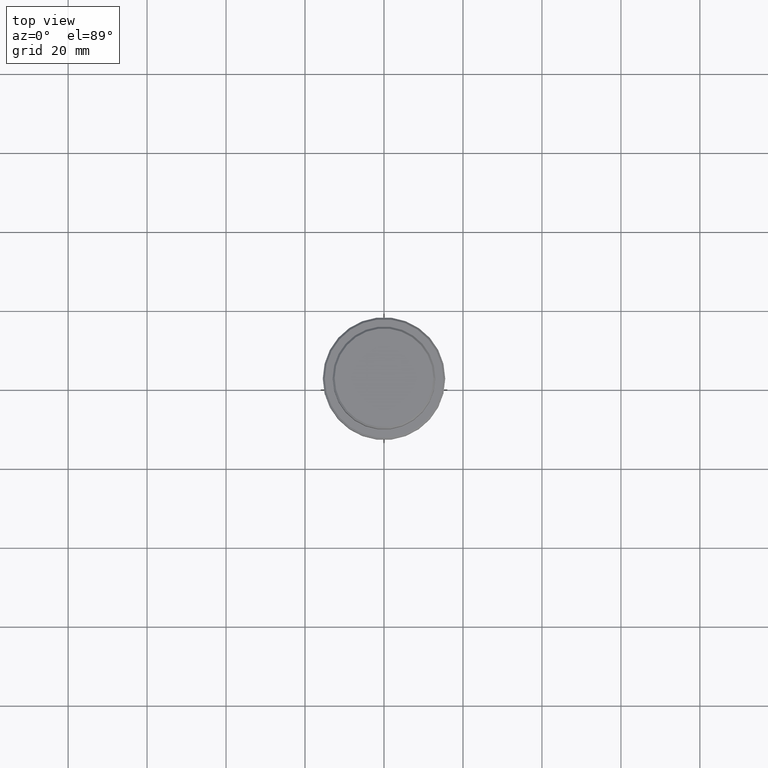
[diagram: clean part render]
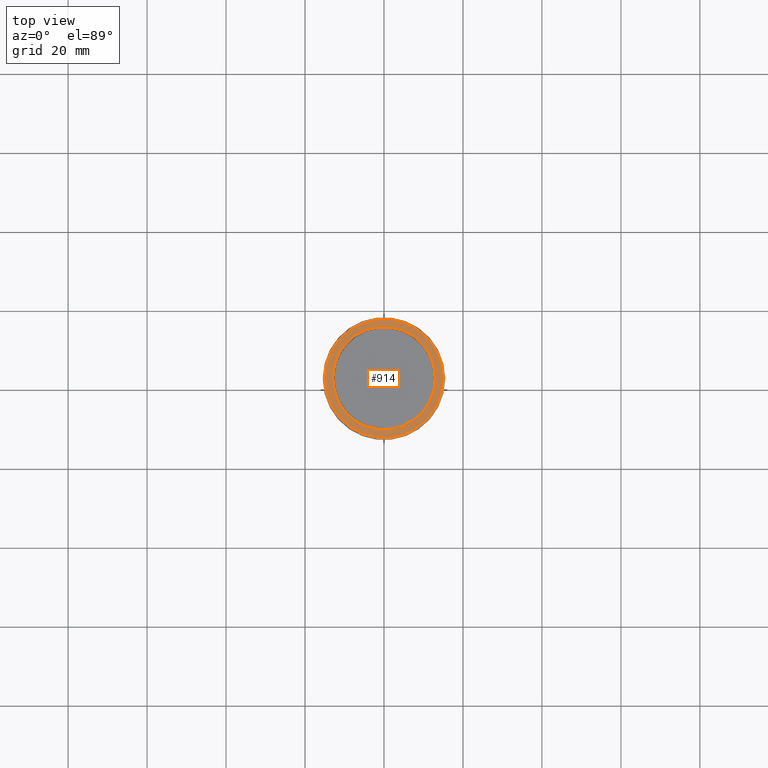
[diagram: same view with one face highlighted and labeled with its STEP entity id]
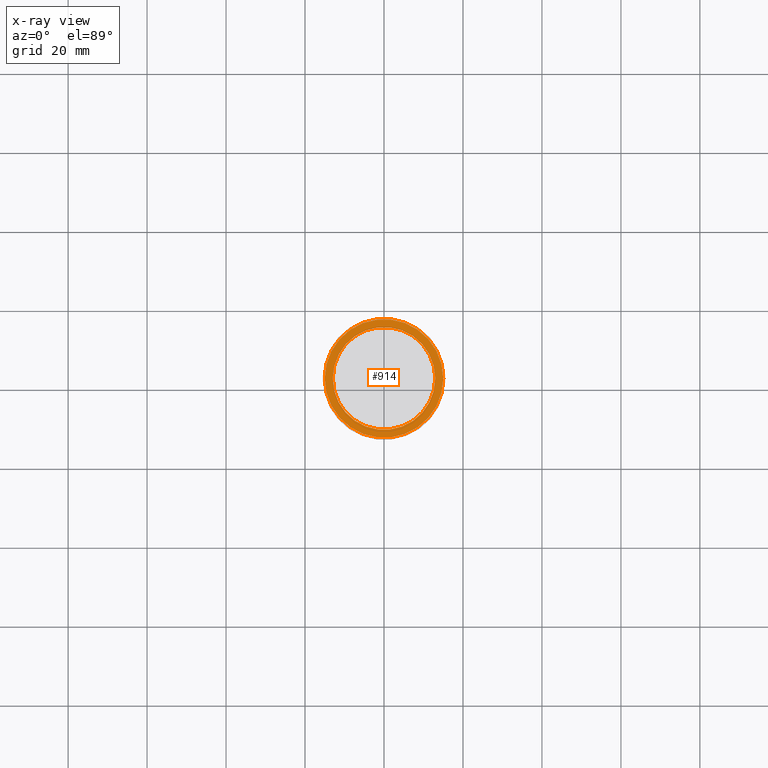
[diagram: x-ray of the same camera — body ghosted, the highlighted face saturated]
A machine part, top view. The second image highlights one B-rep face of the part: STEP entity #914.
The next image is the same camera in x-ray: the body ghosted, the highlighted face saturated — about 0% of this face is hidden behind the body in this view.
In plain terms, the highlighted planar face has unit normal (0, -0, 1).
Its self-contained STEP definition (entity closure, byte-faithful):
#84 = EDGE_CURVE ( 'NONE', #564, #1247, #166, .T. ) ;
#107 = DIRECTION ( 'NONE',  ( 1.000000000000000000, 0.000000000000000000, 0.000000000000000000 ) ) ;
#144 = EDGE_CURVE ( 'NONE', #723, #325, #895, .T. ) ;
#150 = ORIENTED_EDGE ( 'NONE', *, *, #144, .T. ) ;
#164 = DIRECTION ( 'NONE',  ( -0.000000000000000000, -0.000000000000000000, 1.000000000000000000 ) ) ;
#166 = CIRCLE ( 'NONE', #1304, 12.99999999999999467 ) ;
#185 = ORIENTED_EDGE ( 'NONE', *, *, #520, .T. ) ;
#190 = ORIENTED_EDGE ( 'NONE', *, *, #953, .T. ) ;
#225 = FACE_OUTER_BOUND ( 'NONE', #452, .T. ) ;
#295 = DIRECTION ( 'NONE',  ( 1.000000000000000000, 0.000000000000000000, 0.000000000000000000 ) ) ;
#325 = VERTEX_POINT ( 'NONE', #1027 ) ;
#331 = CARTESIAN_POINT ( 'NONE',  ( -15.00000000000001421, 0.000000000000000000, -9.000000000000000000 ) ) ;
#344 = CARTESIAN_POINT ( 'NONE',  ( 0.000000000000000000, 12.49999999999999289, -9.000000000000000000 ) ) ;
#360 = CARTESIAN_POINT ( 'NONE',  ( -12.99999999999999467, 1.592040838891558504E-15, -9.000000000000000000 ) ) ;
#452 = EDGE_LOOP ( 'NONE', ( #150, #190 ) ) ;
#466 = AXIS2_PLACEMENT_3D ( 'NONE', #623, #1074, #107 ) ;
#488 = CIRCLE ( 'NONE', #1062, 15.00000000000001421 ) ;
#520 = EDGE_CURVE ( 'NONE', #1247, #564, #1306, .T. ) ;
#528 = CARTESIAN_POINT ( 'NONE',  ( 0.000000000000000000, 0.000000000000000000, -9.000000000000000000 ) ) ;
#547 = PLANE ( 'NONE',  #1248 ) ;
#564 = VERTEX_POINT ( 'NONE', #748 ) ;
#623 = CARTESIAN_POINT ( 'NONE',  ( 0.000000000000000000, 0.000000000000000000, -9.000000000000000000 ) ) ;
#670 = DIRECTION ( 'NONE',  ( 1.000000000000000000, 0.000000000000000000, 0.000000000000000000 ) ) ;
#676 = DIRECTION ( 'NONE',  ( 1.000000000000000000, 0.000000000000000000, 0.000000000000000000 ) ) ;
#723 = VERTEX_POINT ( 'NONE', #331 ) ;
#727 = ORIENTED_EDGE ( 'NONE', *, *, #84, .T. ) ;
#732 = AXIS2_PLACEMENT_3D ( 'NONE', #763, #1311, #676 ) ;
#748 = CARTESIAN_POINT ( 'NONE',  ( 12.99999999999999467, 0.000000000000000000, -9.000000000000000000 ) ) ;
#763 = CARTESIAN_POINT ( 'NONE',  ( 0.000000000000000000, 0.000000000000000000, -9.000000000000000000 ) ) ;
#839 = DIRECTION ( 'NONE',  ( 0.000000000000000000, 0.000000000000000000, -1.000000000000000000 ) ) ;
#886 = FACE_BOUND ( 'NONE', #1211, .T. ) ;
#895 = CIRCLE ( 'NONE', #732, 15.00000000000001421 ) ;
#914 = ADVANCED_FACE ( 'NONE', ( #225, #886 ), #547, .T. ) ;
#953 = EDGE_CURVE ( 'NONE', #325, #723, #488, .T. ) ;
#984 = DIRECTION ( 'NONE',  ( 0.000000000000000000, -0.000000000000000000, 1.000000000000000000 ) ) ;
#1021 = CARTESIAN_POINT ( 'NONE',  ( 0.000000000000000000, 0.000000000000000000, -9.000000000000000000 ) ) ;
#1027 = CARTESIAN_POINT ( 'NONE',  ( 15.00000000000001421, 1.867586368699714559E-15, -9.000000000000000000 ) ) ;
#1048 = DIRECTION ( 'NONE',  ( 1.000000000000000000, 0.000000000000000000, 0.000000000000000000 ) ) ;
#1062 = AXIS2_PLACEMENT_3D ( 'NONE', #1021, #164, #1048 ) ;
#1074 = DIRECTION ( 'NONE',  ( 0.000000000000000000, 0.000000000000000000, -1.000000000000000000 ) ) ;
#1211 = EDGE_LOOP ( 'NONE', ( #727, #185 ) ) ;
#1247 = VERTEX_POINT ( 'NONE', #360 ) ;
#1248 = AXIS2_PLACEMENT_3D ( 'NONE', #344, #984, #670 ) ;
#1304 = AXIS2_PLACEMENT_3D ( 'NONE', #528, #839, #295 ) ;
#1306 = CIRCLE ( 'NONE', #466, 12.99999999999999467 ) ;
#1311 = DIRECTION ( 'NONE',  ( -0.000000000000000000, -0.000000000000000000, 1.000000000000000000 ) ) ;